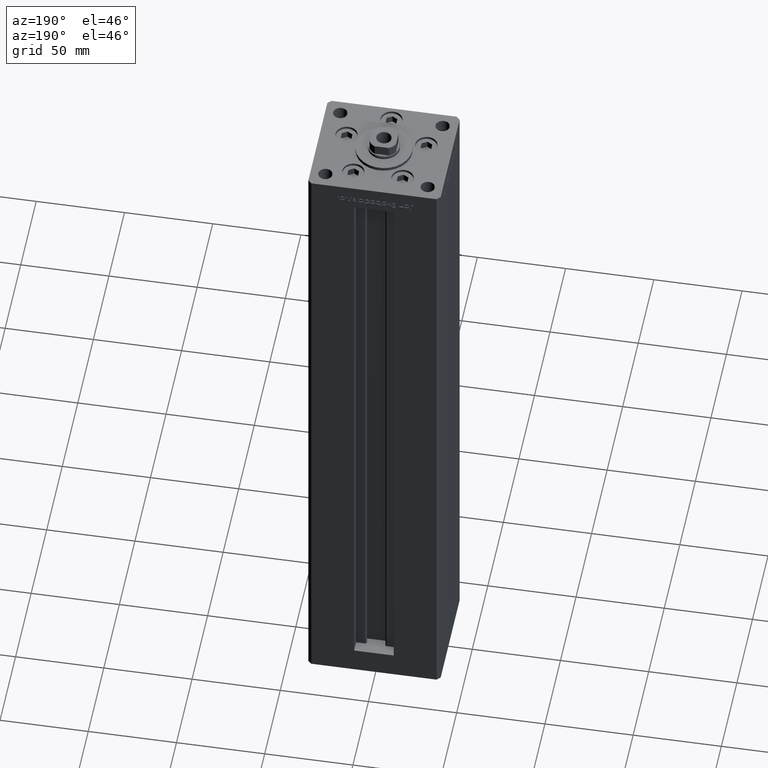
[diagram: clean part render]
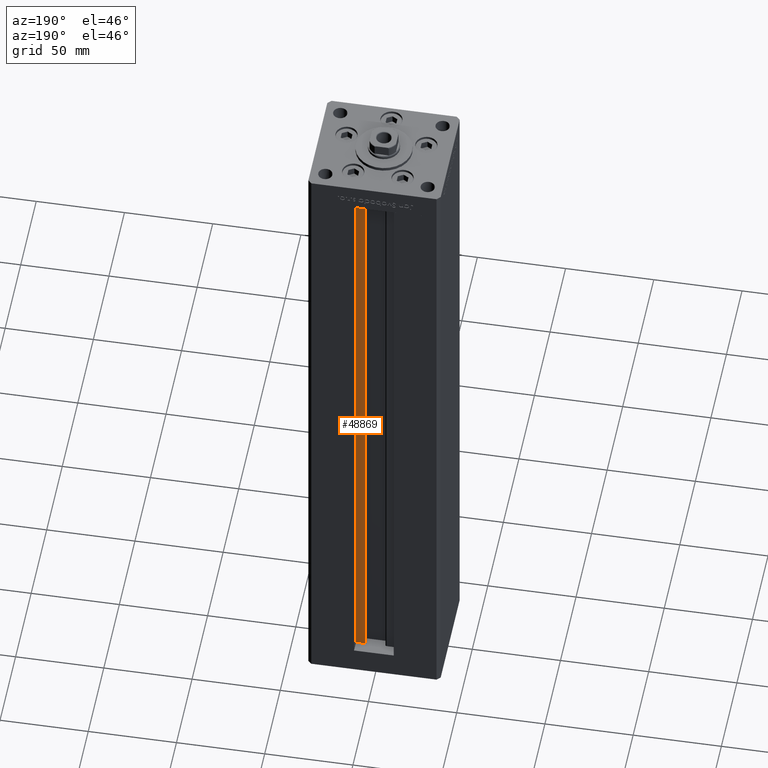
[diagram: same view with one face highlighted and labeled with its STEP entity id]
A machine part, auxiliary view. The second image highlights one B-rep face of the part: STEP entity #48869.
In plain terms, the highlighted planar face has unit normal (0, -1, 0).
Its self-contained STEP definition (entity closure, byte-faithful):
#4311 = VECTOR ( 'NONE', #23689, 1000.000000000000000 ) ;
#6655 = CARTESIAN_POINT ( 'NONE',  ( 6.183333333334001480, 25.99999999999999289, 0.000000000000000000 ) ) ;
#8433 = VERTEX_POINT ( 'NONE', #24550 ) ;
#8706 = VERTEX_POINT ( 'NONE', #20788 ) ;
#10507 = DIRECTION ( 'NONE',  ( -0.000000000000000000, -0.000000000000000000, 1.000000000000000000 ) ) ;
#11439 = VECTOR ( 'NONE', #10507, 1000.000000000000000 ) ;
#11644 = PLANE ( 'NONE',  #24354 ) ;
#13688 = LINE ( 'NONE', #25818, #11439 ) ;
#14463 = VERTEX_POINT ( 'NONE', #31797 ) ;
#17321 = ORIENTED_EDGE ( 'NONE', *, *, #22690, .F. ) ;
#18400 = EDGE_CURVE ( 'NONE', #8433, #18503, #49893, .T. ) ;
#18503 = VERTEX_POINT ( 'NONE', #23731 ) ;
#18810 = DIRECTION ( 'NONE',  ( 0.000000000000000000, -0.000000000000000000, -1.000000000000000000 ) ) ;
#20788 = CARTESIAN_POINT ( 'NONE',  ( 6.183333333334001480, 25.99999999999999289, 0.000000000000000000 ) ) ;
#21937 = ORIENTED_EDGE ( 'NONE', *, *, #49557, .F. ) ;
#22690 = EDGE_CURVE ( 'NONE', #8706, #8433, #27909, .T. ) ;
#23537 = VECTOR ( 'NONE', #48391, 1000.000000000000000 ) ;
#23689 = DIRECTION ( 'NONE',  ( 1.000000000000000000, 0.000000000000000000, 0.000000000000000000 ) ) ;
#23731 = CARTESIAN_POINT ( 'NONE',  ( 11.25000000000000178, 25.99999999999999289, 356.0000000000000000 ) ) ;
#24354 = AXIS2_PLACEMENT_3D ( 'NONE', #6655, #47040, #18810 ) ;
#24550 = CARTESIAN_POINT ( 'NONE',  ( 11.25000000000000178, 25.99999999999999289, 0.000000000000000000 ) ) ;
#24629 = CARTESIAN_POINT ( 'NONE',  ( 0.000000000000000000, 25.99999999999999289, 356.0000000000000000 ) ) ;
#25818 = CARTESIAN_POINT ( 'NONE',  ( 6.183333333334001480, 25.99999999999999289, 0.000000000000000000 ) ) ;
#26670 = ORIENTED_EDGE ( 'NONE', *, *, #37975, .T. ) ;
#27238 = FACE_OUTER_BOUND ( 'NONE', #49319, .T. ) ;
#27909 = LINE ( 'NONE', #35809, #4311 ) ;
#31797 = CARTESIAN_POINT ( 'NONE',  ( 6.183333333334001480, 25.99999999999999289, 356.0000000000000000 ) ) ;
#31830 = ORIENTED_EDGE ( 'NONE', *, *, #18400, .F. ) ;
#35809 = CARTESIAN_POINT ( 'NONE',  ( 6.183333333334001480, 25.99999999999999289, 0.000000000000000000 ) ) ;
#36499 = LINE ( 'NONE', #24629, #23537 ) ;
#37975 = EDGE_CURVE ( 'NONE', #8706, #14463, #13688, .T. ) ;
#38248 = CARTESIAN_POINT ( 'NONE',  ( 11.25000000000000178, 25.99999999999999289, 0.000000000000000000 ) ) ;
#42737 = DIRECTION ( 'NONE',  ( -0.000000000000000000, -0.000000000000000000, 1.000000000000000000 ) ) ;
#47040 = DIRECTION ( 'NONE',  ( 0.000000000000000000, -1.000000000000000000, 0.000000000000000000 ) ) ;
#48391 = DIRECTION ( 'NONE',  ( -1.000000000000000000, 0.000000000000000000, 0.000000000000000000 ) ) ;
#48869 = ADVANCED_FACE ( 'NONE', ( #27238 ), #11644, .F. ) ;
#49319 = EDGE_LOOP ( 'NONE', ( #31830, #17321, #26670, #21937 ) ) ;
#49557 = EDGE_CURVE ( 'NONE', #18503, #14463, #36499, .T. ) ;
#49785 = VECTOR ( 'NONE', #42737, 1000.000000000000000 ) ;
#49893 = LINE ( 'NONE', #38248, #49785 ) ;